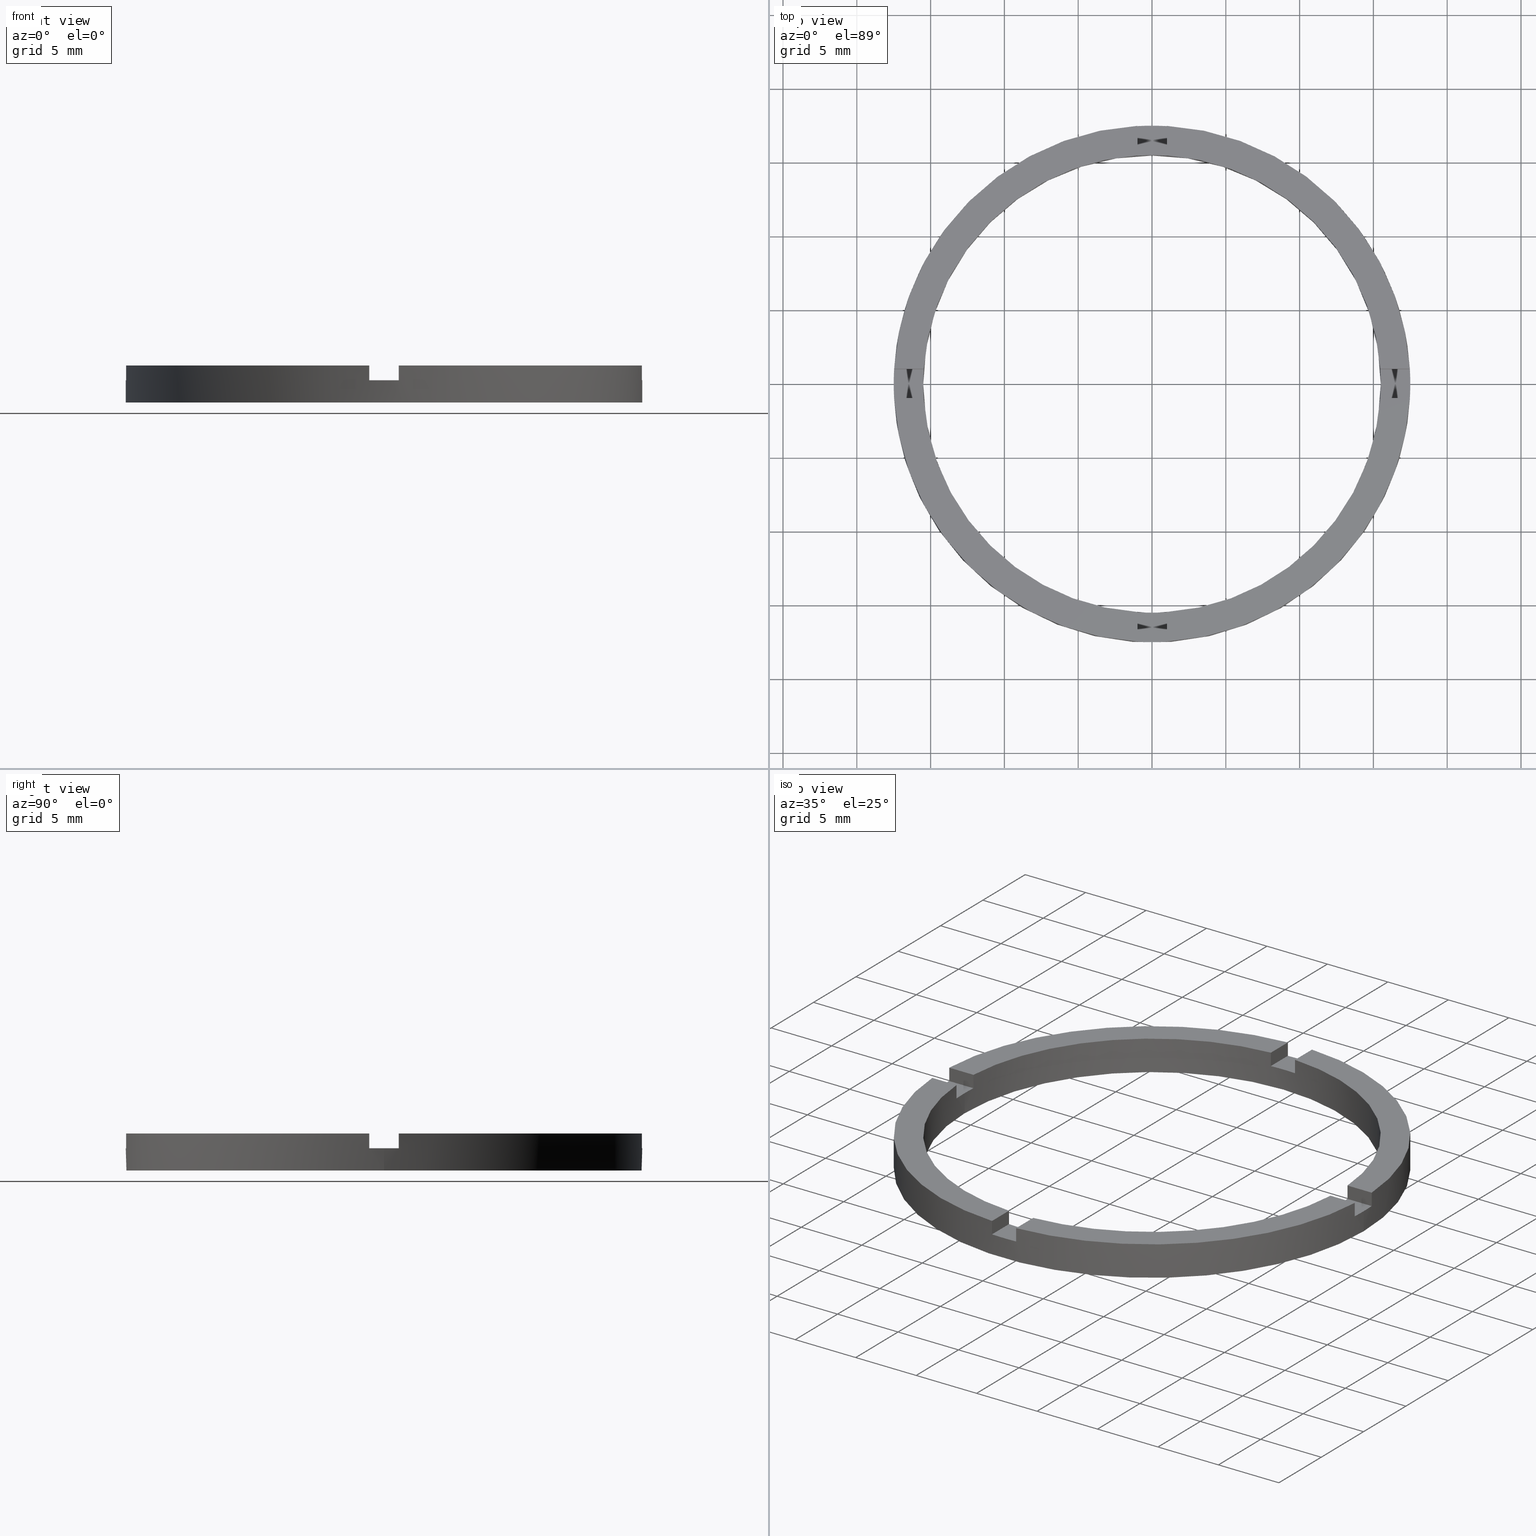
[diagram: canonical four-view strip — front | top / right | iso, engineering-drawing reading convention]
A machine part, canonical four-view strip (front | top / right | iso — engineering-drawing reading convention). The complete STEP part file that produces these views, byte-faithful:
ISO-10303-21;
HEADER;
FILE_DESCRIPTION (( 'STEP AP203' ),
    '1' );
FILE_NAME ('514076.step',
    '2024-12-26T02:35:15',
    ( 'MSI' ),
    ( '' ),
    'SwSTEP 2.0',
    'SolidWorks 2020',
    '' );
FILE_SCHEMA (( 'CONFIG_CONTROL_DESIGN' ));
ENDSEC;

DATA;
#1 = VERTEX_POINT ( 'NONE', #518 ) ;
#2 = AXIS2_PLACEMENT_3D ( 'NONE', #632, #779, #99 ) ;
#3 = DIRECTION ( 'NONE',  ( 1.000000000000000000, 0.000000000000000000, 0.000000000000000000 ) ) ;
#4 = DIRECTION ( 'NONE',  ( -0.000000000000000000, -0.000000000000000000, -1.000000000000000000 ) ) ;
#5 = DIRECTION ( 'NONE',  ( -0.000000000000000000, -0.000000000000000000, -1.000000000000000000 ) ) ;
#6 = ADVANCED_FACE ( 'NONE', ( #150 ), #426, .F. ) ;
#7 = DESIGN_CONTEXT ( 'detailed design', #368, 'design' ) ;
#8 = VERTEX_POINT ( 'NONE', #39 ) ;
#9 = DIRECTION ( 'NONE',  ( 0.000000000000000000, 0.000000000000000000, 1.000000000000000000 ) ) ;
#10 = DIRECTION ( 'NONE',  ( 0.000000000000000000, 0.000000000000000000, 1.000000000000000000 ) ) ;
#11 = ORIENTED_EDGE ( 'NONE', *, *, #355, .T. ) ;
#12 = APPROVAL ( #268, 'δָ��' ) ;
#13 = ADVANCED_FACE ( 'NONE', ( #678 ), #281, .T. ) ;
#14 = CARTESIAN_POINT ( 'NONE',  ( -15.50000000000000000, 0.000000000000000000, 0.000000000000000000 ) ) ;
#15 = EDGE_CURVE ( 'NONE', #533, #513, #684, .T. ) ;
#16 = LINE ( 'NONE', #338, #561 ) ;
#17 = CARTESIAN_POINT ( 'NONE',  ( 17.47140520965616162, 0.9999999999998411271, 2.500000000000000000 ) ) ;
#18 = LINE ( 'NONE', #53, #542 ) ;
#19 = EDGE_CURVE ( 'NONE', #500, #435, #722, .T. ) ;
#20 = VECTOR ( 'NONE', #537, 1000.000000000000000 ) ;
#21 = EDGE_CURVE ( 'NONE', #710, #525, #199, .T. ) ;
#22 = CIRCLE ( 'NONE', #774, 17.50000000000000355 ) ;
#23 = CARTESIAN_POINT ( 'NONE',  ( 0.000000000000000000, 0.000000000000000000, 1.500000000000000000 ) ) ;
#24 = CIRCLE ( 'NONE', #739, 15.50000000000000000 ) ;
#25 = AXIS2_PLACEMENT_3D ( 'NONE', #579, #611, #335 ) ;
#26 = DIRECTION ( 'NONE',  ( -0.000000000000000000, 0.000000000000000000, 1.000000000000000000 ) ) ;
#27 = FACE_OUTER_BOUND ( 'NONE', #217, .T. ) ;
#28 = DIRECTION ( 'NONE',  ( -1.000000000000000000, 0.000000000000000000, 0.000000000000000000 ) ) ;
#29 = DIRECTION ( 'NONE',  ( 0.000000000000000000, 0.000000000000000000, 1.000000000000000000 ) ) ;
#30 = CARTESIAN_POINT ( 'NONE',  ( 0.9999999999998363531, -7.500000000000185629, 1.500000000000000000 ) ) ;
#31 = AXIS2_PLACEMENT_3D ( 'NONE', #316, #311, #778 ) ;
#32 = VECTOR ( 'NONE', #233, 1000.000000000000000 ) ;
#33 = CARTESIAN_POINT ( 'NONE',  ( -1.000000000000025091, 15.46770829825801741, 2.500000000000000000 ) ) ;
#34 = CARTESIAN_POINT ( 'NONE',  ( -7.500000000000190958, -1.000000000000021982, 1.500000000000000000 ) ) ;
#35 = LINE ( 'NONE', #705, #556 ) ;
#36 = CARTESIAN_POINT ( 'NONE',  ( 15.46770829825802984, 0.9999999999998411271, 2.500000000000000000 ) ) ;
#37 = FACE_OUTER_BOUND ( 'NONE', #498, .T. ) ;
#38 = VECTOR ( 'NONE', #521, 1000.000000000000000 ) ;
#39 = CARTESIAN_POINT ( 'NONE',  ( 0.9999999999998366862, -15.46770829825802807, 2.500000000000000000 ) ) ;
#40 = DIRECTION ( 'NONE',  ( 1.000000000000000000, 0.000000000000000000, 0.000000000000000000 ) ) ;
#41 = CARTESIAN_POINT ( 'NONE',  ( -1.000000000000163647, -7.500000000000185629, 1.500000000000000000 ) ) ;
#42 = CARTESIAN_POINT ( 'NONE',  ( 0.9999999999999749090, 7.500000000000005329, 1.500000000000000000 ) ) ;
#43 = CARTESIAN_POINT ( 'NONE',  ( -1.000000000000024647, 15.46770829825801563, 2.500000000000000000 ) ) ;
#44 = VECTOR ( 'NONE', #333, 1000.000000000000000 ) ;
#45 = DIRECTION ( 'NONE',  ( 0.000000000000000000, 0.000000000000000000, 1.000000000000000000 ) ) ;
#46 = DIRECTION ( 'NONE',  ( -0.000000000000000000, -0.000000000000000000, -1.000000000000000000 ) ) ;
#47 = CARTESIAN_POINT ( 'NONE',  ( 0.000000000000000000, 0.000000000000000000, 2.500000000000000000 ) ) ;
#48 = DIRECTION ( 'NONE',  ( -0.000000000000000000, -0.000000000000000000, -1.000000000000000000 ) ) ;
#49 = AXIS2_PLACEMENT_3D ( 'NONE', #428, #10, #668 ) ;
#50 = CARTESIAN_POINT ( 'NONE',  ( 0.9999999999998371303, -15.46770829825802984, 2.500000000000000000 ) ) ;
#51 = DATE_AND_TIME ( #325, #618 ) ;
#52 = CARTESIAN_POINT ( 'NONE',  ( 0.9999999999998366862, -15.46770829825802807, 1.500000000000000000 ) ) ;
#53 = CARTESIAN_POINT ( 'NONE',  ( 17.50000000000000355, 2.143131898507868643E-15, 2.500000000000000000 ) ) ;
#54 = PLANE ( 'NONE',  #120 ) ;
#55 = ADVANCED_FACE ( 'NONE', ( #205 ), #743, .T. ) ;
#56 = CARTESIAN_POINT ( 'NONE',  ( 0.000000000000000000, 0.000000000000000000, 2.500000000000000000 ) ) ;
#57 = DIRECTION ( 'NONE',  ( 0.000000000000000000, 0.000000000000000000, 1.000000000000000000 ) ) ;
#58 = ADVANCED_FACE ( 'NONE', ( #469 ), #61, .F. ) ;
#59 = PLANE ( 'NONE',  #534 ) ;
#60 = AXIS2_PLACEMENT_3D ( 'NONE', #612, #575, #454 ) ;
#61 = PLANE ( 'NONE',  #487 ) ;
#62 = CC_DESIGN_APPROVAL ( #384, ( #514 ) ) ;
#63 = EDGE_CURVE ( 'NONE', #674, #146, #680, .T. ) ;
#64 = EDGE_CURVE ( 'NONE', #169, #213, #137, .T. ) ;
#65 = CARTESIAN_POINT ( 'NONE',  ( 0.9999999999998363531, -7.500000000000185629, 1.500000000000000000 ) ) ;
#66 = APPROVAL_STATUS ( 'not_yet_approved' ) ;
#67 = DIRECTION ( 'NONE',  ( 0.000000000000000000, 0.000000000000000000, 1.000000000000000000 ) ) ;
#68 = DIRECTION ( 'NONE',  ( 1.000000000000000000, -0.000000000000000000, 0.000000000000000000 ) ) ;
#69 = DIRECTION ( 'NONE',  ( 4.336808689942017120E-17, -1.000000000000000000, 0.000000000000000000 ) ) ;
#70 = DIRECTION ( 'NONE',  ( 1.000000000000000000, 1.734723475976806848E-16, -0.000000000000000000 ) ) ;
#71 = DIRECTION ( 'NONE',  ( 1.000000000000000000, 0.000000000000000000, -0.000000000000000000 ) ) ;
#72 = DIRECTION ( 'NONE',  ( 1.000000000000000000, 0.000000000000000000, 0.000000000000000000 ) ) ;
#73 = AXIS2_PLACEMENT_3D ( 'NONE', #65, #375, #228 ) ;
#74 = PERSON_AND_ORGANIZATION ( #256, #349 ) ;
#75 = AXIS2_PLACEMENT_3D ( 'NONE', #163, #236, #587 ) ;
#76 = PERSON_AND_ORGANIZATION_ROLE ( 'design_supplier' ) ;
#77 = COORDINATED_UNIVERSAL_TIME_OFFSET ( 8, 0, .AHEAD. ) ;
#78 = DATE_AND_TIME ( #606, #359 ) ;
#79 = DIRECTION ( 'NONE',  ( -1.000000000000000000, -1.301042606982605074E-16, 0.000000000000000000 ) ) ;
#80 = COORDINATED_UNIVERSAL_TIME_OFFSET ( 8, 0, .AHEAD. ) ;
#81 = EDGE_CURVE ( 'NONE', #735, #435, #147, .T. ) ;
#82 = DIRECTION ( 'NONE',  ( -0.000000000000000000, -0.000000000000000000, -1.000000000000000000 ) ) ;
#83 = DATE_AND_TIME ( #602, #607 ) ;
#84 = DIRECTION ( 'NONE',  ( 1.000000000000000000, 0.000000000000000000, -0.000000000000000000 ) ) ;
#85 = DIRECTION ( 'NONE',  ( 1.000000000000000000, 0.000000000000000000, 0.000000000000000000 ) ) ;
#86 = DIRECTION ( 'NONE',  ( 1.000000000000000000, 0.000000000000000000, 0.000000000000000000 ) ) ;
#87 = CARTESIAN_POINT ( 'NONE',  ( -1.000000000000162537, -15.46770829825800675, 1.500000000000000000 ) ) ;
#88 = FACE_OUTER_BOUND ( 'NONE', #254, .T. ) ;
#89 = EDGE_CURVE ( 'NONE', #213, #169, #683, .T. ) ;
#90 = DIRECTION ( 'NONE',  ( -0.000000000000000000, -1.000000000000000000, -0.000000000000000000 ) ) ;
#91 = CARTESIAN_POINT ( 'NONE',  ( 0.000000000000000000, 0.000000000000000000, 2.500000000000000000 ) ) ;
#92 = CARTESIAN_POINT ( 'NONE',  ( 7.500000000000000000, -1.000000000000159428, 1.500000000000000000 ) ) ;
#93 = COORDINATED_UNIVERSAL_TIME_OFFSET ( 8, 0, .AHEAD. ) ;
#94 = CALENDAR_DATE ( 2024, 26, 12 ) ;
#95 = CARTESIAN_POINT ( 'NONE',  ( -17.47140520965615096, 0.9999999999999763522, 1.500000000000000000 ) ) ;
#96 = DIRECTION ( 'NONE',  ( 0.000000000000000000, 0.000000000000000000, 1.000000000000000000 ) ) ;
#97 = DATE_AND_TIME ( #626, #363 ) ;
#98 = ADVANCED_FACE ( 'NONE', ( #409 ), #586, .F. ) ;
#99 = DIRECTION ( 'NONE',  ( -1.000000000000000000, 0.000000000000000000, 0.000000000000000000 ) ) ;
#100 = LOCAL_TIME ( 10, 35, 15.00000000000000000, #623 ) ;
#101 = EDGE_CURVE ( 'NONE', #161, #735, #401, .T. ) ;
#102 = PERSON_AND_ORGANIZATION ( #256, #349 ) ;
#103 = EDGE_CURVE ( 'NONE', #472, #490, #165, .T. ) ;
#104 = CIRCLE ( 'NONE', #565, 15.50000000000000000 ) ;
#105 = CARTESIAN_POINT ( 'NONE',  ( 0.000000000000000000, 0.000000000000000000, 0.000000000000000000 ) ) ;
#106 = LINE ( 'NONE', #334, #635 ) ;
#107 = ADVANCED_FACE ( 'NONE', ( #149 ), #658, .T. ) ;
#108 = FACE_OUTER_BOUND ( 'NONE', #702, .T. ) ;
#109 = AXIS2_PLACEMENT_3D ( 'NONE', #492, #546, #585 ) ;
#110 = ORIENTED_EDGE ( 'NONE', *, *, #194, .F. ) ;
#111 = DIRECTION ( 'NONE',  ( 0.000000000000000000, 0.000000000000000000, 1.000000000000000000 ) ) ;
#112 = LINE ( 'NONE', #308, #653 ) ;
#113 = EDGE_LOOP ( 'NONE', ( #387, #255, #766, #128 ) ) ;
#114 = DIRECTION ( 'NONE',  ( 0.000000000000000000, -0.000000000000000000, 1.000000000000000000 ) ) ;
#115 = ORIENTED_EDGE ( 'NONE', *, *, #477, .F. ) ;
#116 = SECURITY_CLASSIFICATION_LEVEL ( 'unclassified' ) ;
#117 = EDGE_CURVE ( 'NONE', #737, #677, #399, .T. ) ;
#118 = ORIENTED_EDGE ( 'NONE', *, *, #598, .T. ) ;
#119 = ORIENTED_EDGE ( 'NONE', *, *, #206, .T. ) ;
#120 = AXIS2_PLACEMENT_3D ( 'NONE', #177, #57, #733 ) ;
#121 = CIRCLE ( 'NONE', #267, 15.50000000000000000 ) ;
#122 = LINE ( 'NONE', #383, #397 ) ;
#123 = CARTESIAN_POINT ( 'NONE',  ( 15.46770829825800853, -1.000000000000158984, 1.500000000000000000 ) ) ;
#124 = CARTESIAN_POINT ( 'NONE',  ( 17.47140520965614385, -1.000000000000158984, 2.500000000000000000 ) ) ;
#125 = FACE_OUTER_BOUND ( 'NONE', #215, .T. ) ;
#126 = EDGE_CURVE ( 'NONE', #8, #432, #415, .T. ) ;
#127 = LINE ( 'NONE', #231, #129 ) ;
#128 = ORIENTED_EDGE ( 'NONE', *, *, #477, .T. ) ;
#129 = VECTOR ( 'NONE', #406, 1000.000000000000000 ) ;
#130 = LINE ( 'NONE', #240, #404 ) ;
#131 = EDGE_CURVE ( 'NONE', #402, #432, #130, .T. ) ;
#132 = ORIENTED_EDGE ( 'NONE', *, *, #126, .F. ) ;
#133 = CARTESIAN_POINT ( 'NONE',  ( 7.500000000000000000, -1.000000000000159428, 2.500000000000000000 ) ) ;
#134 = VECTOR ( 'NONE', #738, 1000.000000000000000 ) ;
#135 = ORIENTED_EDGE ( 'NONE', *, *, #531, .T. ) ;
#136 = MECHANICAL_CONTEXT ( 'NONE', #577, 'mechanical' ) ;
#137 = CIRCLE ( 'NONE', #140, 17.50000000000000355 ) ;
#138 = DIRECTION ( 'NONE',  ( 1.000000000000000000, 4.336808689942017120E-17, 0.000000000000000000 ) ) ;
#139 = CARTESIAN_POINT ( 'NONE',  ( 0.9999999999999744649, 15.46770829825801918, 1.500000000000000000 ) ) ;
#140 = AXIS2_PLACEMENT_3D ( 'NONE', #105, #433, #304 ) ;
#141 = EDGE_LOOP ( 'NONE', ( #689, #690, #728, #464 ) ) ;
#142 = VERTEX_POINT ( 'NONE', #660 ) ;
#143 = FACE_OUTER_BOUND ( 'NONE', #448, .T. ) ;
#144 = ORIENTED_EDGE ( 'NONE', *, *, #264, .T. ) ;
#145 = EDGE_CURVE ( 'NONE', #517, #497, #665, .T. ) ;
#146 = VERTEX_POINT ( 'NONE', #14 ) ;
#147 = LINE ( 'NONE', #503, #669 ) ;
#148 = DIRECTION ( 'NONE',  ( 1.000000000000000000, 0.000000000000000000, 0.000000000000000000 ) ) ;
#149 = FACE_OUTER_BOUND ( 'NONE', #530, .T. ) ;
#150 = FACE_OUTER_BOUND ( 'NONE', #759, .T. ) ;
#151 = CARTESIAN_POINT ( 'NONE',  ( -15.46770829825801741, -1.000000000000023315, 1.500000000000000000 ) ) ;
#152 = ORIENTED_EDGE ( 'NONE', *, *, #81, .T. ) ;
#153 = ORIENTED_EDGE ( 'NONE', *, *, #303, .F. ) ;
#154 = PLANE ( 'NONE',  #697 ) ;
#155 = VECTOR ( 'NONE', #5, 1000.000000000000000 ) ;
#156 = CARTESIAN_POINT ( 'NONE',  ( -7.500000000000190958, -1.000000000000021982, 2.500000000000000000 ) ) ;
#157 = DIRECTION ( 'NONE',  ( 1.000000000000000000, 0.000000000000000000, 0.000000000000000000 ) ) ;
#158 = EDGE_LOOP ( 'NONE', ( #271, #685, #427, #11 ) ) ;
#159 = EDGE_CURVE ( 'NONE', #184, #475, #417, .T. ) ;
#160 = DIRECTION ( 'NONE',  ( 1.000000000000000000, 0.000000000000000000, -0.000000000000000000 ) ) ;
#161 = VERTEX_POINT ( 'NONE', #87 ) ;
#162 = ORIENTED_EDGE ( 'NONE', *, *, #569, .T. ) ;
#163 = CARTESIAN_POINT ( 'NONE',  ( 0.000000000000000000, 0.000000000000000000, 2.500000000000000000 ) ) ;
#164 = EDGE_LOOP ( 'NONE', ( #520, #451, #253, #216 ) ) ;
#165 = CIRCLE ( 'NONE', #31, 17.50000000000000355 ) ;
#166 = AXIS2_PLACEMENT_3D ( 'NONE', #56, #185, #491 ) ;
#167 = CARTESIAN_POINT ( 'NONE',  ( -17.47140520965615096, -1.000000000000023759, 1.500000000000000000 ) ) ;
#168 = ORIENTED_EDGE ( 'NONE', *, *, #747, .T. ) ;
#169 = VERTEX_POINT ( 'NONE', #639 ) ;
#170 = EDGE_LOOP ( 'NONE', ( #210, #780, #681, #410 ) ) ;
#171 = CARTESIAN_POINT ( 'NONE',  ( -1.000000000000025091, 17.47140520965615096, 2.500000000000000000 ) ) ;
#172 = ADVANCED_FACE ( 'NONE', ( #143 ), #718, .F. ) ;
#173 = CYLINDRICAL_SURFACE ( 'NONE', #2, 17.50000000000000355 ) ;
#174 = FACE_OUTER_BOUND ( 'NONE', #422, .T. ) ;
#175 = DIRECTION ( 'NONE',  ( -0.000000000000000000, -0.000000000000000000, -1.000000000000000000 ) ) ;
#176 = DIRECTION ( 'NONE',  ( 1.734723475976806848E-16, -1.000000000000000000, 0.000000000000000000 ) ) ;
#177 = CARTESIAN_POINT ( 'NONE',  ( 0.000000000000000000, 0.000000000000000000, 2.500000000000000000 ) ) ;
#178 = ADVANCED_BREP_SHAPE_REPRESENTATION ( '514076', ( #711, #186 ), #352 ) ;
#179 = ORIENTED_EDGE ( 'NONE', *, *, #63, .T. ) ;
#180 = EDGE_LOOP ( 'NONE', ( #686, #261, #515, #459 ) ) ;
#181 = LINE ( 'NONE', #171, #692 ) ;
#182 = AXIS2_PLACEMENT_3D ( 'NONE', #644, #446, #506 ) ;
#183 = ORIENTED_EDGE ( 'NONE', *, *, #306, .F. ) ;
#184 = VERTEX_POINT ( 'NONE', #43 ) ;
#185 = DIRECTION ( 'NONE',  ( -0.000000000000000000, -0.000000000000000000, -1.000000000000000000 ) ) ;
#186 = AXIS2_PLACEMENT_3D ( 'NONE', #567, #45, #148 ) ;
#187 = ORIENTED_EDGE ( 'NONE', *, *, #392, .T. ) ;
#188 = VECTOR ( 'NONE', #378, 1000.000000000000000 ) ;
#189 = ORIENTED_EDGE ( 'NONE', *, *, #488, .F. ) ;
#190 = EDGE_CURVE ( 'NONE', #748, #440, #181, .T. ) ;
#191 = VERTEX_POINT ( 'NONE', #290 ) ;
#192 = ORIENTED_EDGE ( 'NONE', *, *, #81, .F. ) ;
#193 = ORIENTED_EDGE ( 'NONE', *, *, #117, .T. ) ;
#194 = EDGE_CURVE ( 'NONE', #472, #263, #444, .T. ) ;
#195 = EDGE_LOOP ( 'NONE', ( #445, #258, #519, #527 ) ) ;
#196 = ADVANCED_FACE ( 'NONE', ( #174, #437 ), #336, .F. ) ;
#197 = ORIENTED_EDGE ( 'NONE', *, *, #551, .T. ) ;
#198 = ORIENTED_EDGE ( 'NONE', *, *, #145, .T. ) ;
#199 = LINE ( 'NONE', #34, #204 ) ;
#200 = ORIENTED_EDGE ( 'NONE', *, *, #563, .F. ) ;
#201 = AXIS2_PLACEMENT_3D ( 'NONE', #591, #643, #3 ) ;
#202 = ORIENTED_EDGE ( 'NONE', *, *, #303, .T. ) ;
#203 = ORIENTED_EDGE ( 'NONE', *, *, #716, .T. ) ;
#204 = VECTOR ( 'NONE', #70, 1000.000000000000000 ) ;
#205 = FACE_OUTER_BOUND ( 'NONE', #158, .T. ) ;
#206 = EDGE_CURVE ( 'NONE', #517, #529, #698, .T. ) ;
#207 = ORIENTED_EDGE ( 'NONE', *, *, #583, .F. ) ;
#208 = AXIS2_PLACEMENT_3D ( 'NONE', #457, #227, #532 ) ;
#209 = ORIENTED_EDGE ( 'NONE', *, *, #277, .F. ) ;
#210 = ORIENTED_EDGE ( 'NONE', *, *, #194, .T. ) ;
#211 = ORIENTED_EDGE ( 'NONE', *, *, #633, .T. ) ;
#212 = CARTESIAN_POINT ( 'NONE',  ( -1.000000000000024647, 15.46770829825801563, 1.500000000000000000 ) ) ;
#213 = VERTEX_POINT ( 'NONE', #582 ) ;
#214 = CARTESIAN_POINT ( 'NONE',  ( -1.000000000000162759, -15.46770829825800853, 2.500000000000000000 ) ) ;
#215 = EDGE_LOOP ( 'NONE', ( #484, #132, #504, #119 ) ) ;
#216 = ORIENTED_EDGE ( 'NONE', *, *, #716, .F. ) ;
#217 = EDGE_LOOP ( 'NONE', ( #118, #676, #650, #450, #714, #193 ) ) ;
#218 = CARTESIAN_POINT ( 'NONE',  ( 0.9999999999999744649, 17.47140520965614741, 1.500000000000000000 ) ) ;
#219 = ORIENTED_EDGE ( 'NONE', *, *, #598, .F. ) ;
#220 = CARTESIAN_POINT ( 'NONE',  ( -7.500000000000190958, 0.9999999999999781286, 2.500000000000000000 ) ) ;
#221 = DIRECTION ( 'NONE',  ( -1.301042606982605074E-16, 1.000000000000000000, -0.000000000000000000 ) ) ;
#222 = CARTESIAN_POINT ( 'NONE',  ( 0.9999999999999749090, 15.46770829825802096, 2.500000000000000000 ) ) ;
#223 = DATE_TIME_ROLE ( 'classification_date' ) ;
#224 = DIRECTION ( 'NONE',  ( -0.000000000000000000, -0.000000000000000000, -1.000000000000000000 ) ) ;
#225 = ORIENTED_EDGE ( 'NONE', *, *, #569, .F. ) ;
#226 = PERSON_AND_ORGANIZATION_ROLE ( 'creator' ) ;
#227 = DIRECTION ( 'NONE',  ( 0.000000000000000000, 0.000000000000000000, 1.000000000000000000 ) ) ;
#228 = DIRECTION ( 'NONE',  ( -1.301042606982605074E-16, 1.000000000000000000, 0.000000000000000000 ) ) ;
#229 = EDGE_CURVE ( 'NONE', #511, #529, #438, .T. ) ;
#230 = CC_DESIGN_APPROVAL ( #443, ( #319 ) ) ;
#231 = CARTESIAN_POINT ( 'NONE',  ( 7.500000000000000000, 0.9999999999998406830, 1.500000000000000000 ) ) ;
#232 = ORIENTED_EDGE ( 'NONE', *, *, #117, .F. ) ;
#233 = DIRECTION ( 'NONE',  ( -0.000000000000000000, -0.000000000000000000, -1.000000000000000000 ) ) ;
#234 = DIRECTION ( 'NONE',  ( 0.000000000000000000, 0.000000000000000000, 1.000000000000000000 ) ) ;
#235 = AXIS2_PLACEMENT_3D ( 'NONE', #382, #29, #72 ) ;
#236 = DIRECTION ( 'NONE',  ( -0.000000000000000000, -0.000000000000000000, -1.000000000000000000 ) ) ;
#237 = ORIENTED_EDGE ( 'NONE', *, *, #15, .F. ) ;
#238 = DIRECTION ( 'NONE',  ( 0.000000000000000000, 0.000000000000000000, 1.000000000000000000 ) ) ;
#239 = ORIENTED_EDGE ( 'NONE', *, *, #601, .T. ) ;
#240 = CARTESIAN_POINT ( 'NONE',  ( 15.46770829825800853, -1.000000000000158984, 2.500000000000000000 ) ) ;
#241 = ORIENTED_EDGE ( 'NONE', *, *, #159, .F. ) ;
#242 = ORIENTED_EDGE ( 'NONE', *, *, #229, .T. ) ;
#243 = ORIENTED_EDGE ( 'NONE', *, *, #103, .F. ) ;
#244 = AXIS2_PLACEMENT_3D ( 'NONE', #724, #346, #412 ) ;
#245 = CARTESIAN_POINT ( 'NONE',  ( 17.50000000000000355, 2.143131898507868643E-15, 1.500000000000000000 ) ) ;
#246 = PRODUCT_DEFINITION_SHAPE ( 'NONE', 'NONE',  #514 ) ;
#247 = ADVANCED_FACE ( 'NONE', ( #704 ), #173, .T. ) ;
#248 = ORIENTED_EDGE ( 'NONE', *, *, #318, .T. ) ;
#249 = DIRECTION ( 'NONE',  ( 1.301042606982605074E-16, -1.000000000000000000, 0.000000000000000000 ) ) ;
#250 = AXIS2_PLACEMENT_3D ( 'NONE', #715, #452, #528 ) ;
#251 = ORIENTED_EDGE ( 'NONE', *, *, #101, .F. ) ;
#252 = CARTESIAN_POINT ( 'NONE',  ( 15.46770829825802984, 0.9999999999998411271, 2.500000000000000000 ) ) ;
#253 = ORIENTED_EDGE ( 'NONE', *, *, #601, .F. ) ;
#254 = EDGE_LOOP ( 'NONE', ( #436, #510, #673, #482 ) ) ;
#255 = ORIENTED_EDGE ( 'NONE', *, *, #595, .F. ) ;
#256 = PERSON ( 'δָ��', 'δָ��', 'δָ��', ('δָ��'), ('δָ��'), ('δָ��') ) ;
#257 = ADVANCED_FACE ( 'NONE', ( #377 ), #54, .T. ) ;
#258 = ORIENTED_EDGE ( 'NONE', *, *, #159, .T. ) ;
#259 = CARTESIAN_POINT ( 'NONE',  ( 0.9999999999998369082, -17.47140520965615806, 1.500000000000000000 ) ) ;
#260 = ORIENTED_EDGE ( 'NONE', *, *, #269, .F. ) ;
#261 = ORIENTED_EDGE ( 'NONE', *, *, #516, .T. ) ;
#262 = ORIENTED_EDGE ( 'NONE', *, *, #206, .F. ) ;
#263 = VERTEX_POINT ( 'NONE', #252 ) ;
#264 = EDGE_CURVE ( 'NONE', #674, #525, #640, .T. ) ;
#265 = DIRECTION ( 'NONE',  ( 1.000000000000000000, 0.000000000000000000, 0.000000000000000000 ) ) ;
#266 = VERTEX_POINT ( 'NONE', #423 ) ;
#267 = AXIS2_PLACEMENT_3D ( 'NONE', #571, #772, #40 ) ;
#268 = APPROVAL_STATUS ( 'not_yet_approved' ) ;
#269 = EDGE_CURVE ( 'NONE', #691, #710, #372, .T. ) ;
#270 = CARTESIAN_POINT ( 'NONE',  ( -1.000000000000024647, 17.47140520965614741, 1.500000000000000000 ) ) ;
#271 = ORIENTED_EDGE ( 'NONE', *, *, #360, .T. ) ;
#272 = EDGE_CURVE ( 'NONE', #497, #703, #649, .T. ) ;
#273 = PERSON_AND_ORGANIZATION_ROLE ( 'creator' ) ;
#274 = DIRECTION ( 'NONE',  ( 1.000000000000000000, 4.336808689942017120E-17, 0.000000000000000000 ) ) ;
#275 = AXIS2_PLACEMENT_3D ( 'NONE', #285, #455, #71 ) ;
#276 = PLANE ( 'NONE',  #275 ) ;
#277 = EDGE_CURVE ( 'NONE', #405, #146, #390, .T. ) ;
#278 = DIRECTION ( 'NONE',  ( -0.000000000000000000, -1.000000000000000000, -0.000000000000000000 ) ) ;
#279 = VECTOR ( 'NONE', #4, 1000.000000000000000 ) ;
#280 = DIRECTION ( 'NONE',  ( 1.000000000000000000, 4.336808689942017120E-17, 0.000000000000000000 ) ) ;
#281 = PLANE ( 'NONE',  #60 ) ;
#282 = AXIS2_PLACEMENT_3D ( 'NONE', #339, #574, #393 ) ;
#283 = PERSON_AND_ORGANIZATION_ROLE ( 'design_owner' ) ;
#284 = FACE_OUTER_BOUND ( 'NONE', #170, .T. ) ;
#285 = CARTESIAN_POINT ( 'NONE',  ( 0.000000000000000000, 0.000000000000000000, 1.500000000000000000 ) ) ;
#286 = AXIS2_PLACEMENT_3D ( 'NONE', #91, #238, #309 ) ;
#287 = CARTESIAN_POINT ( 'NONE',  ( 0.9999999999999749090, 17.47140520965615096, 2.500000000000000000 ) ) ;
#288 = LINE ( 'NONE', #615, #545 ) ;
#289 = CIRCLE ( 'NONE', #182, 15.50000000000000000 ) ;
#290 = CARTESIAN_POINT ( 'NONE',  ( -17.47140520965615096, -1.000000000000023759, 2.500000000000000000 ) ) ;
#291 = VECTOR ( 'NONE', #331, 1000.000000000000000 ) ;
#292 = APPROVAL_ROLE ( '' ) ;
#293 = VECTOR ( 'NONE', #224, 1000.000000000000000 ) ;
#294 = DIRECTION ( 'NONE',  ( 1.301042606982605074E-16, -1.000000000000000000, 0.000000000000000000 ) ) ;
#295 = CIRCLE ( 'NONE', #495, 17.50000000000000355 ) ;
#296 = DIRECTION ( 'NONE',  ( 0.000000000000000000, 1.000000000000000000, 0.000000000000000000 ) ) ;
#297 = LINE ( 'NONE', #50, #38 ) ;
#298 = CARTESIAN_POINT ( 'NONE',  ( -1.000000000000024647, 17.47140520965614741, 2.500000000000000000 ) ) ;
#299 = VECTOR ( 'NONE', #629, 1000.000000000000000 ) ;
#300 = CARTESIAN_POINT ( 'NONE',  ( 17.47140520965614385, -1.000000000000158984, 1.500000000000000000 ) ) ;
#301 = LINE ( 'NONE', #624, #305 ) ;
#302 = CARTESIAN_POINT ( 'NONE',  ( 0.000000000000000000, 0.000000000000000000, 0.000000000000000000 ) ) ;
#303 = EDGE_CURVE ( 'NONE', #737, #142, #106, .T. ) ;
#304 = DIRECTION ( 'NONE',  ( 1.000000000000000000, 0.000000000000000000, 0.000000000000000000 ) ) ;
#305 = VECTOR ( 'NONE', #374, 1000.000000000000000 ) ;
#306 = EDGE_CURVE ( 'NONE', #402, #424, #656, .T. ) ;
#307 = LINE ( 'NONE', #287, #44 ) ;
#308 = CARTESIAN_POINT ( 'NONE',  ( -1.000000000000025091, 7.500000000000005329, 1.500000000000000000 ) ) ;
#309 = DIRECTION ( 'NONE',  ( 1.000000000000000000, 0.000000000000000000, 0.000000000000000000 ) ) ;
#310 = LINE ( 'NONE', #544, #279 ) ;
#311 = DIRECTION ( 'NONE',  ( 0.000000000000000000, 0.000000000000000000, 1.000000000000000000 ) ) ;
#312 = VECTOR ( 'NONE', #588, 1000.000000000000000 ) ;
#313 = LINE ( 'NONE', #156, #312 ) ;
#314 = LINE ( 'NONE', #573, #291 ) ;
#315 = CARTESIAN_POINT ( 'NONE',  ( -17.50000000000000355, 0.000000000000000000, 1.500000000000000000 ) ) ;
#316 = CARTESIAN_POINT ( 'NONE',  ( 0.000000000000000000, 0.000000000000000000, 2.500000000000000000 ) ) ;
#317 = PRODUCT ( '514076', '514076', '', ( #136 ) ) ;
#318 = EDGE_CURVE ( 'NONE', #677, #535, #122, .T. ) ;
#319 = SECURITY_CLASSIFICATION ( '', '', #116 ) ;
#320 = ADVANCED_FACE ( 'NONE', ( #88 ), #371, .F. ) ;
#321 = DIRECTION ( 'NONE',  ( -1.000000000000000000, -1.734723475976806848E-16, 0.000000000000000000 ) ) ;
#322 = ADVANCED_FACE ( 'NONE', ( #366 ), #637, .F. ) ;
#323 = AXIS2_PLACEMENT_3D ( 'NONE', #474, #460, #620 ) ;
#324 = PRODUCT_DEFINITION_FORMATION_WITH_SPECIFIED_SOURCE ( '�κ�', '', #317, .NOT_KNOWN. ) ;
#325 = CALENDAR_DATE ( 2024, 26, 12 ) ;
#326 = PERSON_AND_ORGANIZATION_ROLE ( 'classification_officer' ) ;
#327 = EDGE_CURVE ( 'NONE', #263, #513, #104, .T. ) ;
#328 = PLANE ( 'NONE',  #250 ) ;
#329 = CARTESIAN_POINT ( 'NONE',  ( 0.000000000000000000, 0.000000000000000000, 2.500000000000000000 ) ) ;
#330 = CARTESIAN_POINT ( 'NONE',  ( 0.9999999999999744649, 17.47140520965614741, 2.500000000000000000 ) ) ;
#331 = DIRECTION ( 'NONE',  ( -1.301042606982605074E-16, 1.000000000000000000, -0.000000000000000000 ) ) ;
#332 = AXIS2_PLACEMENT_3D ( 'NONE', #599, #114, #600 ) ;
#333 = DIRECTION ( 'NONE',  ( 0.000000000000000000, 0.000000000000000000, 1.000000000000000000 ) ) ;
#334 = CARTESIAN_POINT ( 'NONE',  ( -15.46770829825802096, 0.9999999999999767963, 2.500000000000000000 ) ) ;
#335 = DIRECTION ( 'NONE',  ( 1.000000000000000000, 0.000000000000000000, 0.000000000000000000 ) ) ;
#336 = PLANE ( 'NONE',  #613 ) ;
#337 = CARTESIAN_POINT ( 'NONE',  ( 0.000000000000000000, 0.000000000000000000, 1.500000000000000000 ) ) ;
#338 = CARTESIAN_POINT ( 'NONE',  ( -15.46770829825801741, -1.000000000000023315, 2.500000000000000000 ) ) ;
#339 = CARTESIAN_POINT ( 'NONE',  ( 0.000000000000000000, 0.000000000000000000, 1.500000000000000000 ) ) ;
#340 = DIRECTION ( 'NONE',  ( 1.000000000000000000, 1.734723475976806848E-16, 0.000000000000000000 ) ) ;
#341 = CARTESIAN_POINT ( 'NONE',  ( 0.000000000000000000, 0.000000000000000000, 2.500000000000000000 ) ) ;
#342 = CARTESIAN_POINT ( 'NONE',  ( 0.9999999999999749090, 7.500000000000005329, 2.500000000000000000 ) ) ;
#343 = PERSON_AND_ORGANIZATION ( #256, #349 ) ;
#344 = CARTESIAN_POINT ( 'NONE',  ( -15.46770829825801741, -1.000000000000023315, 2.500000000000000000 ) ) ;
#345 = APPROVAL_PERSON_ORGANIZATION ( #365, #12, #292 ) ;
#346 = DIRECTION ( 'NONE',  ( 0.000000000000000000, -0.000000000000000000, 1.000000000000000000 ) ) ;
#347 = CARTESIAN_POINT ( 'NONE',  ( -1.000000000000025091, 7.500000000000005329, 1.500000000000000000 ) ) ;
#348 = DATE_AND_TIME ( #94, #100 ) ;
#349 = ORGANIZATION ( 'δָ��', 'δָ��', '' ) ;
#350 = DIRECTION ( 'NONE',  ( 1.000000000000000000, 0.000000000000000000, 0.000000000000000000 ) ) ;
#351 = APPROVAL_DATE_TIME ( #83, #12 ) ;
#352 =( GEOMETRIC_REPRESENTATION_CONTEXT ( 3 ) GLOBAL_UNCERTAINTY_ASSIGNED_CONTEXT ( ( #447 ) ) GLOBAL_UNIT_ASSIGNED_CONTEXT ( ( #627, #526, #536 ) ) REPRESENTATION_CONTEXT ( 'NONE', 'WORKASPACE' ) );
#353 = COORDINATED_UNIVERSAL_TIME_OFFSET ( 8, 0, .AHEAD. ) ;
#354 = PERSON_AND_ORGANIZATION ( #256, #349 ) ;
#355 = EDGE_CURVE ( 'NONE', #533, #493, #367, .T. ) ;
#356 = DIRECTION ( 'NONE',  ( 1.000000000000000000, 0.000000000000000000, -0.000000000000000000 ) ) ;
#357 = ADVANCED_FACE ( 'NONE', ( #108 ), #580, .F. ) ;
#358 = AXIS2_PLACEMENT_3D ( 'NONE', #749, #26, #362 ) ;
#359 = LOCAL_TIME ( 10, 35, 15.00000000000000000, #353 ) ;
#360 = EDGE_CURVE ( 'NONE', #493, #440, #638, .T. ) ;
#361 = PERSON_AND_ORGANIZATION ( #256, #349 ) ;
#362 = DIRECTION ( 'NONE',  ( 1.000000000000000000, 0.000000000000000000, 0.000000000000000000 ) ) ;
#363 = LOCAL_TIME ( 10, 35, 15.00000000000000000, #80 ) ;
#364 = APPROVAL_PERSON_ORGANIZATION ( #343, #384, #442 ) ;
#365 = PERSON_AND_ORGANIZATION ( #256, #349 ) ;
#366 = FACE_OUTER_BOUND ( 'NONE', #180, .T. ) ;
#367 = LINE ( 'NONE', #42, #634 ) ;
#368 = APPLICATION_CONTEXT ( 'configuration controlled 3d designs of mechanical parts and assemblies' ) ;
#369 = CARTESIAN_POINT ( 'NONE',  ( 15.50000000000000000, 1.898202538678397557E-15, 0.000000000000000000 ) ) ;
#370 = DIRECTION ( 'NONE',  ( -0.000000000000000000, 0.000000000000000000, 1.000000000000000000 ) ) ;
#371 = PLANE ( 'NONE',  #416 ) ;
#372 = CIRCLE ( 'NONE', #109, 17.50000000000000355 ) ;
#373 = AXIS2_PLACEMENT_3D ( 'NONE', #570, #752, #28 ) ;
#374 = DIRECTION ( 'NONE',  ( -0.000000000000000000, -0.000000000000000000, -1.000000000000000000 ) ) ;
#375 = DIRECTION ( 'NONE',  ( 1.000000000000000000, 1.301042606982605074E-16, 0.000000000000000000 ) ) ;
#376 = EDGE_CURVE ( 'NONE', #695, #213, #18, .T. ) ;
#377 = FACE_OUTER_BOUND ( 'NONE', #113, .T. ) ;
#378 = DIRECTION ( 'NONE',  ( -1.000000000000000000, -4.336808689942017120E-17, -0.000000000000000000 ) ) ;
#379 = ORIENTED_EDGE ( 'NONE', *, *, #693, .T. ) ;
#380 = LINE ( 'NONE', #342, #663 ) ;
#381 = CIRCLE ( 'NONE', #652, 15.50000000000000000 ) ;
#382 = CARTESIAN_POINT ( 'NONE',  ( 0.000000000000000000, 0.000000000000000000, 1.500000000000000000 ) ) ;
#383 = CARTESIAN_POINT ( 'NONE',  ( -17.47140520965615096, 0.9999999999999763522, 2.500000000000000000 ) ) ;
#384 = APPROVAL ( #66, 'δָ��' ) ;
#385 = DIRECTION ( 'NONE',  ( 0.000000000000000000, 0.000000000000000000, 1.000000000000000000 ) ) ;
#386 = CIRCLE ( 'NONE', #208, 17.50000000000000355 ) ;
#387 = ORIENTED_EDGE ( 'NONE', *, *, #19, .F. ) ;
#388 = EDGE_CURVE ( 'NONE', #191, #710, #310, .T. ) ;
#389 = CIRCLE ( 'NONE', #201, 15.50000000000000000 ) ;
#390 = CIRCLE ( 'NONE', #590, 15.50000000000000000 ) ;
#391 = ORIENTED_EDGE ( 'NONE', *, *, #551, .F. ) ;
#392 = EDGE_CURVE ( 'NONE', #737, #674, #289, .T. ) ;
#393 = DIRECTION ( 'NONE',  ( 1.000000000000000000, 0.000000000000000000, 0.000000000000000000 ) ) ;
#394 = CC_DESIGN_SECURITY_CLASSIFICATION ( #319, ( #324 ) ) ;
#395 = LINE ( 'NONE', #476, #655 ) ;
#396 = CARTESIAN_POINT ( 'NONE',  ( 0.000000000000000000, 0.000000000000000000, 0.000000000000000000 ) ) ;
#397 = VECTOR ( 'NONE', #617, 1000.000000000000000 ) ;
#398 = DIRECTION ( 'NONE',  ( 0.000000000000000000, -0.000000000000000000, 1.000000000000000000 ) ) ;
#399 = LINE ( 'NONE', #631, #662 ) ;
#400 = CYLINDRICAL_SURFACE ( 'NONE', #75, 15.50000000000000000 ) ;
#401 = LINE ( 'NONE', #413, #688 ) ;
#402 = VERTEX_POINT ( 'NONE', #123 ) ;
#403 = CARTESIAN_POINT ( 'NONE',  ( 0.000000000000000000, 0.000000000000000000, 1.500000000000000000 ) ) ;
#404 = VECTOR ( 'NONE', #486, 1000.000000000000000 ) ;
#405 = VERTEX_POINT ( 'NONE', #369 ) ;
#406 = DIRECTION ( 'NONE',  ( -1.000000000000000000, -4.336808689942017120E-17, -0.000000000000000000 ) ) ;
#407 = FACE_OUTER_BOUND ( 'NONE', #481, .T. ) ;
#408 = ORIENTED_EDGE ( 'NONE', *, *, #190, .T. ) ;
#409 = FACE_OUTER_BOUND ( 'NONE', #141, .T. ) ;
#410 = ORIENTED_EDGE ( 'NONE', *, *, #730, .F. ) ;
#411 = DIRECTION ( 'NONE',  ( 0.000000000000000000, 1.000000000000000000, 0.000000000000000000 ) ) ;
#412 = DIRECTION ( 'NONE',  ( 1.000000000000000000, 0.000000000000000000, 0.000000000000000000 ) ) ;
#413 = CARTESIAN_POINT ( 'NONE',  ( -1.000000000000163647, -7.500000000000185629, 1.500000000000000000 ) ) ;
#414 = DIRECTION ( 'NONE',  ( -0.000000000000000000, -0.000000000000000000, -1.000000000000000000 ) ) ;
#415 = CIRCLE ( 'NONE', #744, 15.50000000000000000 ) ;
#416 = AXIS2_PLACEMENT_3D ( 'NONE', #777, #68, #522 ) ;
#417 = LINE ( 'NONE', #33, #670 ) ;
#418 = ORIENTED_EDGE ( 'NONE', *, *, #306, .T. ) ;
#419 = AXIS2_PLACEMENT_3D ( 'NONE', #41, #79, #294 ) ;
#420 = PLANE ( 'NONE',  #524 ) ;
#421 = ORIENTED_EDGE ( 'NONE', *, *, #488, .T. ) ;
#422 = EDGE_LOOP ( 'NONE', ( #783, #509 ) ) ;
#423 = CARTESIAN_POINT ( 'NONE',  ( 17.47140520965616162, 0.9999999999998411271, 1.500000000000000000 ) ) ;
#424 = VERTEX_POINT ( 'NONE', #671 ) ;
#425 = CARTESIAN_POINT ( 'NONE',  ( 0.000000000000000000, 0.000000000000000000, 0.000000000000000000 ) ) ;
#426 = CYLINDRICAL_SURFACE ( 'NONE', #373, 15.50000000000000000 ) ;
#427 = ORIENTED_EDGE ( 'NONE', *, *, #764, .F. ) ;
#428 = CARTESIAN_POINT ( 'NONE',  ( 0.000000000000000000, 0.000000000000000000, 2.500000000000000000 ) ) ;
#429 = ADVANCED_FACE ( 'NONE', ( #553 ), #59, .T. ) ;
#430 = ORIENTED_EDGE ( 'NONE', *, *, #767, .F. ) ;
#431 = CARTESIAN_POINT ( 'NONE',  ( -1.000000000000162537, -15.46770829825800675, 2.500000000000000000 ) ) ;
#432 = VERTEX_POINT ( 'NONE', #562 ) ;
#433 = DIRECTION ( 'NONE',  ( 0.000000000000000000, 0.000000000000000000, 1.000000000000000000 ) ) ;
#434 = EDGE_CURVE ( 'NONE', #748, #535, #560, .T. ) ;
#435 = VERTEX_POINT ( 'NONE', #499 ) ;
#436 = ORIENTED_EDGE ( 'NONE', *, *, #355, .F. ) ;
#437 = FACE_BOUND ( 'NONE', #745, .T. ) ;
#438 = LINE ( 'NONE', #709, #701 ) ;
#439 = ORIENTED_EDGE ( 'NONE', *, *, #277, .T. ) ;
#440 = VERTEX_POINT ( 'NONE', #270 ) ;
#441 = EDGE_CURVE ( 'NONE', #735, #497, #559, .T. ) ;
#442 = APPROVAL_ROLE ( '' ) ;
#443 = APPROVAL ( #622, 'δָ��' ) ;
#444 = LINE ( 'NONE', #470, #188 ) ;
#445 = ORIENTED_EDGE ( 'NONE', *, *, #604, .T. ) ;
#446 = DIRECTION ( 'NONE',  ( 0.000000000000000000, 0.000000000000000000, 1.000000000000000000 ) ) ;
#447 = UNCERTAINTY_MEASURE_WITH_UNIT (LENGTH_MEASURE( 1.000000000000000082E-05 ), #627, 'distance_accuracy_value', 'NONE');
#448 = EDGE_LOOP ( 'NONE', ( #189, #782, #645, #706 ) ) ;
#449 = ORIENTED_EDGE ( 'NONE', *, *, #89, .T. ) ;
#450 = ORIENTED_EDGE ( 'NONE', *, *, #264, .F. ) ;
#451 = ORIENTED_EDGE ( 'NONE', *, *, #434, .T. ) ;
#452 = DIRECTION ( 'NONE',  ( -4.336808689942017120E-17, 1.000000000000000000, 0.000000000000000000 ) ) ;
#453 = ORIENTED_EDGE ( 'NONE', *, *, #764, .T. ) ;
#454 = DIRECTION ( 'NONE',  ( 1.000000000000000000, 0.000000000000000000, -0.000000000000000000 ) ) ;
#455 = DIRECTION ( 'NONE',  ( 0.000000000000000000, 0.000000000000000000, 1.000000000000000000 ) ) ;
#456 = ORIENTED_EDGE ( 'NONE', *, *, #360, .F. ) ;
#457 = CARTESIAN_POINT ( 'NONE',  ( 0.000000000000000000, 0.000000000000000000, 1.500000000000000000 ) ) ;
#458 = AXIS2_PLACEMENT_3D ( 'NONE', #726, #9, #350 ) ;
#459 = ORIENTED_EDGE ( 'NONE', *, *, #145, .F. ) ;
#460 = DIRECTION ( 'NONE',  ( 0.000000000000000000, 0.000000000000000000, 1.000000000000000000 ) ) ;
#461 = DIRECTION ( 'NONE',  ( 0.000000000000000000, 0.000000000000000000, 1.000000000000000000 ) ) ;
#462 = ORIENTED_EDGE ( 'NONE', *, *, #583, .T. ) ;
#463 = VECTOR ( 'NONE', #461, 1000.000000000000000 ) ;
#464 = ORIENTED_EDGE ( 'NONE', *, *, #388, .F. ) ;
#465 = VECTOR ( 'NONE', #758, 1000.000000000000000 ) ;
#466 = ORIENTED_EDGE ( 'NONE', *, *, #64, .T. ) ;
#467 = CARTESIAN_POINT ( 'NONE',  ( 0.000000000000000000, 0.000000000000000000, 1.500000000000000000 ) ) ;
#468 = DIRECTION ( 'NONE',  ( 1.000000000000000000, 0.000000000000000000, 0.000000000000000000 ) ) ;
#469 = FACE_OUTER_BOUND ( 'NONE', #195, .T. ) ;
#470 = CARTESIAN_POINT ( 'NONE',  ( 7.500000000000000000, 0.9999999999998406830, 2.500000000000000000 ) ) ;
#471 = ORIENTED_EDGE ( 'NONE', *, *, #318, .F. ) ;
#472 = VERTEX_POINT ( 'NONE', #17 ) ;
#473 = CC_DESIGN_APPROVAL ( #12, ( #324 ) ) ;
#474 = CARTESIAN_POINT ( 'NONE',  ( 0.000000000000000000, 0.000000000000000000, 2.500000000000000000 ) ) ;
#475 = VERTEX_POINT ( 'NONE', #212 ) ;
#476 = CARTESIAN_POINT ( 'NONE',  ( 17.47140520965616162, 0.9999999999998411271, 2.500000000000000000 ) ) ;
#477 = EDGE_CURVE ( 'NONE', #191, #435, #295, .T. ) ;
#478 = ORIENTED_EDGE ( 'NONE', *, *, #376, .F. ) ;
#479 = DIRECTION ( 'NONE',  ( 1.000000000000000000, 0.000000000000000000, 0.000000000000000000 ) ) ;
#480 = DIRECTION ( 'NONE',  ( 0.000000000000000000, 0.000000000000000000, 1.000000000000000000 ) ) ;
#481 = EDGE_LOOP ( 'NONE', ( #251, #162, #775, #192 ) ) ;
#482 = ORIENTED_EDGE ( 'NONE', *, *, #633, .F. ) ;
#483 = CARTESIAN_POINT ( 'NONE',  ( -15.46770829825802096, 0.9999999999999767963, 1.500000000000000000 ) ) ;
#484 = ORIENTED_EDGE ( 'NONE', *, *, #576, .F. ) ;
#485 = DIRECTION ( 'NONE',  ( -0.000000000000000000, 0.000000000000000000, 1.000000000000000000 ) ) ;
#486 = DIRECTION ( 'NONE',  ( 0.000000000000000000, 0.000000000000000000, 1.000000000000000000 ) ) ;
#487 = AXIS2_PLACEMENT_3D ( 'NONE', #347, #651, #234 ) ;
#488 = EDGE_CURVE ( 'NONE', #402, #511, #288, .T. ) ;
#489 = DIRECTION ( 'NONE',  ( 1.000000000000000000, 0.000000000000000000, 0.000000000000000000 ) ) ;
#490 = VERTEX_POINT ( 'NONE', #330 ) ;
#491 = DIRECTION ( 'NONE',  ( -1.000000000000000000, 0.000000000000000000, 0.000000000000000000 ) ) ;
#492 = CARTESIAN_POINT ( 'NONE',  ( 0.000000000000000000, 0.000000000000000000, 1.500000000000000000 ) ) ;
#493 = VERTEX_POINT ( 'NONE', #218 ) ;
#494 = ADVANCED_FACE ( 'NONE', ( #27 ), #276, .T. ) ;
#495 = AXIS2_PLACEMENT_3D ( 'NONE', #596, #111, #265 ) ;
#496 = DIRECTION ( 'NONE',  ( 1.000000000000000000, 0.000000000000000000, 0.000000000000000000 ) ) ;
#497 = VERTEX_POINT ( 'NONE', #259 ) ;
#498 = EDGE_LOOP ( 'NONE', ( #667, #729, #110, #713 ) ) ;
#499 = CARTESIAN_POINT ( 'NONE',  ( -1.000000000000162315, -17.47140520965614030, 2.500000000000000000 ) ) ;
#500 = VERTEX_POINT ( 'NONE', #431 ) ;
#501 = ORIENTED_EDGE ( 'NONE', *, *, #376, .T. ) ;
#502 = ADVANCED_FACE ( 'NONE', ( #284 ), #328, .F. ) ;
#503 = CARTESIAN_POINT ( 'NONE',  ( -1.000000000000162759, -17.47140520965614030, 2.500000000000000000 ) ) ;
#504 = ORIENTED_EDGE ( 'NONE', *, *, #589, .F. ) ;
#505 = EDGE_LOOP ( 'NONE', ( #478, #765, #242, #262, #198, #507, #152, #115, #763, #260, #135, #466 ) ) ;
#506 = DIRECTION ( 'NONE',  ( 1.000000000000000000, 0.000000000000000000, 0.000000000000000000 ) ) ;
#507 = ORIENTED_EDGE ( 'NONE', *, *, #441, .F. ) ;
#508 = ORIENTED_EDGE ( 'NONE', *, *, #272, .T. ) ;
#509 = ORIENTED_EDGE ( 'NONE', *, *, #89, .F. ) ;
#510 = ORIENTED_EDGE ( 'NONE', *, *, #15, .T. ) ;
#511 = VERTEX_POINT ( 'NONE', #300 ) ;
#512 = DATE_TIME_ROLE ( 'creation_date' ) ;
#513 = VERTEX_POINT ( 'NONE', #776 ) ;
#514 = PRODUCT_DEFINITION ( 'δ֪', '', #324, #7 ) ;
#515 = ORIENTED_EDGE ( 'NONE', *, *, #272, .F. ) ;
#516 = EDGE_CURVE ( 'NONE', #8, #703, #297, .T. ) ;
#517 = VERTEX_POINT ( 'NONE', #694 ) ;
#518 = CARTESIAN_POINT ( 'NONE',  ( 15.46770829825802984, 0.9999999999998411271, 1.500000000000000000 ) ) ;
#519 = ORIENTED_EDGE ( 'NONE', *, *, #734, .F. ) ;
#520 = ORIENTED_EDGE ( 'NONE', *, *, #604, .F. ) ;
#521 = DIRECTION ( 'NONE',  ( -0.000000000000000000, -0.000000000000000000, -1.000000000000000000 ) ) ;
#522 = DIRECTION ( 'NONE',  ( 0.000000000000000000, 0.000000000000000000, -1.000000000000000000 ) ) ;
#523 = ORIENTED_EDGE ( 'NONE', *, *, #434, .F. ) ;
#524 = AXIS2_PLACEMENT_3D ( 'NONE', #723, #485, #489 ) ;
#525 = VERTEX_POINT ( 'NONE', #151 ) ;
#526 =( NAMED_UNIT ( * ) PLANE_ANGLE_UNIT ( ) SI_UNIT ( $, .RADIAN. ) );
#527 = ORIENTED_EDGE ( 'NONE', *, *, #190, .F. ) ;
#528 = DIRECTION ( 'NONE',  ( -1.000000000000000000, -4.336808689942017120E-17, 0.000000000000000000 ) ) ;
#529 = VERTEX_POINT ( 'NONE', #124 ) ;
#530 = EDGE_LOOP ( 'NONE', ( #391, #501, #449, #719, #219, #248, #523, #408, #456, #211, #243, #672 ) ) ;
#531 = EDGE_CURVE ( 'NONE', #691, #169, #564, .T. ) ;
#532 = DIRECTION ( 'NONE',  ( 1.000000000000000000, 0.000000000000000000, 0.000000000000000000 ) ) ;
#533 = VERTEX_POINT ( 'NONE', #139 ) ;
#534 = AXIS2_PLACEMENT_3D ( 'NONE', #23, #610, #356 ) ;
#535 = VERTEX_POINT ( 'NONE', #755 ) ;
#536 =( NAMED_UNIT ( * ) SI_UNIT ( $, .STERADIAN. ) SOLID_ANGLE_UNIT ( ) );
#537 = DIRECTION ( 'NONE',  ( 0.000000000000000000, 0.000000000000000000, 1.000000000000000000 ) ) ;
#538 = DIRECTION ( 'NONE',  ( 0.000000000000000000, 0.000000000000000000, 1.000000000000000000 ) ) ;
#539 = CARTESIAN_POINT ( 'NONE',  ( -1.000000000000162315, -17.47140520965614030, 1.500000000000000000 ) ) ;
#540 = CARTESIAN_POINT ( 'NONE',  ( 0.000000000000000000, 0.000000000000000000, 2.500000000000000000 ) ) ;
#541 = DIRECTION ( 'NONE',  ( 0.000000000000000000, 0.000000000000000000, 1.000000000000000000 ) ) ;
#542 = VECTOR ( 'NONE', #175, 1000.000000000000000 ) ;
#543 = CARTESIAN_POINT ( 'NONE',  ( -15.50000000000000000, 0.000000000000000000, 1.500000000000000000 ) ) ;
#544 = CARTESIAN_POINT ( 'NONE',  ( -17.47140520965615096, -1.000000000000023759, 2.500000000000000000 ) ) ;
#545 = VECTOR ( 'NONE', #138, 1000.000000000000000 ) ;
#546 = DIRECTION ( 'NONE',  ( 0.000000000000000000, 0.000000000000000000, 1.000000000000000000 ) ) ;
#547 = LINE ( 'NONE', #214, #20 ) ;
#548 = VECTOR ( 'NONE', #274, 1000.000000000000000 ) ;
#549 = LINE ( 'NONE', #36, #293 ) ;
#550 = CC_DESIGN_PERSON_AND_ORGANIZATION_ASSIGNMENT ( #102, #226, ( #514 ) ) ;
#551 = EDGE_CURVE ( 'NONE', #695, #266, #22, .T. ) ;
#552 = CIRCLE ( 'NONE', #25, 15.50000000000000000 ) ;
#553 = FACE_OUTER_BOUND ( 'NONE', #721, .T. ) ;
#554 = CC_DESIGN_DATE_AND_TIME_ASSIGNMENT ( #78, #223, ( #319 ) ) ;
#555 = CIRCLE ( 'NONE', #235, 17.50000000000000355 ) ;
#556 = VECTOR ( 'NONE', #278, 1000.000000000000000 ) ;
#557 = LINE ( 'NONE', #133, #548 ) ;
#558 = AXIS2_PLACEMENT_3D ( 'NONE', #540, #768, #636 ) ;
#559 = CIRCLE ( 'NONE', #358, 17.50000000000000355 ) ;
#560 = CIRCLE ( 'NONE', #49, 17.50000000000000355 ) ;
#561 = VECTOR ( 'NONE', #46, 1000.000000000000000 ) ;
#562 = CARTESIAN_POINT ( 'NONE',  ( 15.46770829825800853, -1.000000000000158984, 2.500000000000000000 ) ) ;
#563 = EDGE_CURVE ( 'NONE', #664, #525, #16, .T. ) ;
#564 = LINE ( 'NONE', #760, #32 ) ;
#565 = AXIS2_PLACEMENT_3D ( 'NONE', #329, #761, #468 ) ;
#566 = LINE ( 'NONE', #220, #299 ) ;
#567 = CARTESIAN_POINT ( 'NONE',  ( 0.000000000000000000, 0.000000000000000000, 0.000000000000000000 ) ) ;
#568 = APPROVAL_DATE_TIME ( #51, #443 ) ;
#569 = EDGE_CURVE ( 'NONE', #161, #500, #547, .T. ) ;
#570 = CARTESIAN_POINT ( 'NONE',  ( 0.000000000000000000, 0.000000000000000000, 2.500000000000000000 ) ) ;
#571 = CARTESIAN_POINT ( 'NONE',  ( 0.000000000000000000, 0.000000000000000000, 1.500000000000000000 ) ) ;
#572 = SHAPE_DEFINITION_REPRESENTATION ( #246, #178 ) ;
#573 = CARTESIAN_POINT ( 'NONE',  ( 0.9999999999998363531, -7.500000000000185629, 2.500000000000000000 ) ) ;
#574 = DIRECTION ( 'NONE',  ( 0.000000000000000000, 0.000000000000000000, 1.000000000000000000 ) ) ;
#575 = DIRECTION ( 'NONE',  ( 0.000000000000000000, 0.000000000000000000, 1.000000000000000000 ) ) ;
#576 = EDGE_CURVE ( 'NONE', #432, #529, #557, .T. ) ;
#577 = APPLICATION_CONTEXT ( 'configuration controlled 3d designs of mechanical parts and assemblies' ) ;
#578 = CC_DESIGN_PERSON_AND_ORGANIZATION_ASSIGNMENT ( #361, #273, ( #324 ) ) ;
#579 = CARTESIAN_POINT ( 'NONE',  ( 0.000000000000000000, 0.000000000000000000, 2.500000000000000000 ) ) ;
#580 = PLANE ( 'NONE',  #696 ) ;
#581 = EDGE_CURVE ( 'NONE', #191, #664, #313, .T. ) ;
#582 = CARTESIAN_POINT ( 'NONE',  ( 17.50000000000000355, 2.143131898507868643E-15, 0.000000000000000000 ) ) ;
#583 = EDGE_CURVE ( 'NONE', #161, #703, #24, .T. ) ;
#584 = APPLICATION_PROTOCOL_DEFINITION ( 'international standard', 'config_control_design', 1994, #368 ) ;
#585 = DIRECTION ( 'NONE',  ( 1.000000000000000000, 0.000000000000000000, 0.000000000000000000 ) ) ;
#586 = PLANE ( 'NONE',  #750 ) ;
#587 = DIRECTION ( 'NONE',  ( -1.000000000000000000, 0.000000000000000000, 0.000000000000000000 ) ) ;
#588 = DIRECTION ( 'NONE',  ( 1.000000000000000000, 1.734723475976806848E-16, -0.000000000000000000 ) ) ;
#589 = EDGE_CURVE ( 'NONE', #517, #8, #314, .T. ) ;
#590 = AXIS2_PLACEMENT_3D ( 'NONE', #302, #480, #86 ) ;
#591 = CARTESIAN_POINT ( 'NONE',  ( 0.000000000000000000, 0.000000000000000000, 0.000000000000000000 ) ) ;
#592 = EDGE_CURVE ( 'NONE', #263, #1, #549, .T. ) ;
#593 = AXIS2_PLACEMENT_3D ( 'NONE', #92, #69, #280 ) ;
#594 = CARTESIAN_POINT ( 'NONE',  ( -15.50000000000000000, 0.000000000000000000, 2.500000000000000000 ) ) ;
#595 = EDGE_CURVE ( 'NONE', #664, #500, #552, .T. ) ;
#596 = CARTESIAN_POINT ( 'NONE',  ( 0.000000000000000000, 0.000000000000000000, 2.500000000000000000 ) ) ;
#597 = ADVANCED_FACE ( 'NONE', ( #37 ), #687, .T. ) ;
#598 = EDGE_CURVE ( 'NONE', #677, #691, #555, .T. ) ;
#599 = CARTESIAN_POINT ( 'NONE',  ( 0.000000000000000000, 0.000000000000000000, 1.500000000000000000 ) ) ;
#600 = DIRECTION ( 'NONE',  ( 1.000000000000000000, 0.000000000000000000, -0.000000000000000000 ) ) ;
#601 = EDGE_CURVE ( 'NONE', #142, #535, #566, .T. ) ;
#602 = CALENDAR_DATE ( 2024, 26, 12 ) ;
#603 = PERSON_AND_ORGANIZATION ( #256, #349 ) ;
#604 = EDGE_CURVE ( 'NONE', #748, #184, #35, .T. ) ;
#605 = CC_DESIGN_PERSON_AND_ORGANIZATION_ASSIGNMENT ( #74, #76, ( #324 ) ) ;
#606 = CALENDAR_DATE ( 2024, 26, 12 ) ;
#607 = LOCAL_TIME ( 10, 35, 15.00000000000000000, #93 ) ;
#608 = APPLICATION_PROTOCOL_DEFINITION ( 'international standard', 'config_control_design', 1994, #577 ) ;
#609 = APPROVAL_PERSON_ORGANIZATION ( #603, #443, #614 ) ;
#610 = DIRECTION ( 'NONE',  ( 0.000000000000000000, 0.000000000000000000, 1.000000000000000000 ) ) ;
#611 = DIRECTION ( 'NONE',  ( 0.000000000000000000, 0.000000000000000000, 1.000000000000000000 ) ) ;
#612 = CARTESIAN_POINT ( 'NONE',  ( 0.000000000000000000, 0.000000000000000000, 2.500000000000000000 ) ) ;
#613 = AXIS2_PLACEMENT_3D ( 'NONE', #396, #385, #160 ) ;
#614 = APPROVAL_ROLE ( '' ) ;
#615 = CARTESIAN_POINT ( 'NONE',  ( 7.500000000000000000, -1.000000000000159428, 1.500000000000000000 ) ) ;
#616 = PLANE ( 'NONE',  #419 ) ;
#617 = DIRECTION ( 'NONE',  ( 0.000000000000000000, 0.000000000000000000, 1.000000000000000000 ) ) ;
#618 = LOCAL_TIME ( 10, 35, 15.00000000000000000, #77 ) ;
#619 = PERSON_AND_ORGANIZATION ( #256, #349 ) ;
#620 = DIRECTION ( 'NONE',  ( 1.000000000000000000, 0.000000000000000000, 0.000000000000000000 ) ) ;
#621 = APPROVAL_DATE_TIME ( #97, #384 ) ;
#622 = APPROVAL_STATUS ( 'not_yet_approved' ) ;
#623 = COORDINATED_UNIVERSAL_TIME_OFFSET ( 8, 0, .AHEAD. ) ;
#624 = CARTESIAN_POINT ( 'NONE',  ( 15.50000000000000000, 1.898202538678397557E-15, 2.500000000000000000 ) ) ;
#625 = CARTESIAN_POINT ( 'NONE',  ( -7.500000000000190958, 0.9999999999999781286, 1.500000000000000000 ) ) ;
#626 = CALENDAR_DATE ( 2024, 26, 12 ) ;
#627 =( LENGTH_UNIT ( ) NAMED_UNIT ( * ) SI_UNIT ( .MILLI., .METRE. ) );
#628 = CC_DESIGN_DATE_AND_TIME_ASSIGNMENT ( #348, #512, ( #514 ) ) ;
#629 = DIRECTION ( 'NONE',  ( -1.000000000000000000, -1.734723475976806848E-16, 0.000000000000000000 ) ) ;
#630 = EDGE_CURVE ( 'NONE', #424, #405, #301, .T. ) ;
#631 = CARTESIAN_POINT ( 'NONE',  ( -7.500000000000190958, 0.9999999999999781286, 1.500000000000000000 ) ) ;
#632 = CARTESIAN_POINT ( 'NONE',  ( 0.000000000000000000, 0.000000000000000000, 2.500000000000000000 ) ) ;
#633 = EDGE_CURVE ( 'NONE', #493, #490, #307, .T. ) ;
#634 = VECTOR ( 'NONE', #296, 1000.000000000000000 ) ;
#635 = VECTOR ( 'NONE', #756, 1000.000000000000000 ) ;
#636 = DIRECTION ( 'NONE',  ( 1.000000000000000000, 0.000000000000000000, -0.000000000000000000 ) ) ;
#637 = PLANE ( 'NONE',  #73 ) ;
#638 = CIRCLE ( 'NONE', #244, 17.50000000000000355 ) ;
#639 = CARTESIAN_POINT ( 'NONE',  ( -17.50000000000000355, 0.000000000000000000, 0.000000000000000000 ) ) ;
#640 = CIRCLE ( 'NONE', #458, 15.50000000000000000 ) ;
#641 = VECTOR ( 'NONE', #221, 1000.000000000000000 ) ;
#642 = ORIENTED_EDGE ( 'NONE', *, *, #126, .T. ) ;
#643 = DIRECTION ( 'NONE',  ( 0.000000000000000000, 0.000000000000000000, 1.000000000000000000 ) ) ;
#644 = CARTESIAN_POINT ( 'NONE',  ( 0.000000000000000000, 0.000000000000000000, 1.500000000000000000 ) ) ;
#645 = ORIENTED_EDGE ( 'NONE', *, *, #576, .T. ) ;
#646 = EDGE_CURVE ( 'NONE', #511, #695, #386, .T. ) ;
#647 = ADVANCED_FACE ( 'NONE', ( #407 ), #616, .F. ) ;
#648 = CIRCLE ( 'NONE', #286, 15.50000000000000000 ) ;
#649 = LINE ( 'NONE', #30, #641 ) ;
#650 = ORIENTED_EDGE ( 'NONE', *, *, #21, .T. ) ;
#651 = DIRECTION ( 'NONE',  ( -1.000000000000000000, 0.000000000000000000, 0.000000000000000000 ) ) ;
#652 = AXIS2_PLACEMENT_3D ( 'NONE', #337, #398, #682 ) ;
#653 = VECTOR ( 'NONE', #90, 1000.000000000000000 ) ;
#654 = ORIENTED_EDGE ( 'NONE', *, *, #595, .T. ) ;
#655 = VECTOR ( 'NONE', #48, 1000.000000000000000 ) ;
#656 = CIRCLE ( 'NONE', #282, 15.50000000000000000 ) ;
#657 = ADVANCED_FACE ( 'NONE', ( #661 ), #420, .T. ) ;
#658 = CYLINDRICAL_SURFACE ( 'NONE', #166, 17.50000000000000355 ) ;
#659 = ORIENTED_EDGE ( 'NONE', *, *, #630, .T. ) ;
#660 = CARTESIAN_POINT ( 'NONE',  ( -15.46770829825802096, 0.9999999999999767963, 2.500000000000000000 ) ) ;
#661 = FACE_OUTER_BOUND ( 'NONE', #725, .T. ) ;
#662 = VECTOR ( 'NONE', #321, 1000.000000000000000 ) ;
#663 = VECTOR ( 'NONE', #411, 1000.000000000000000 ) ;
#664 = VERTEX_POINT ( 'NONE', #344 ) ;
#665 = LINE ( 'NONE', #717, #134 ) ;
#666 = FACE_OUTER_BOUND ( 'NONE', #751, .T. ) ;
#667 = ORIENTED_EDGE ( 'NONE', *, *, #720, .F. ) ;
#668 = DIRECTION ( 'NONE',  ( 1.000000000000000000, 0.000000000000000000, 0.000000000000000000 ) ) ;
#669 = VECTOR ( 'NONE', #707, 1000.000000000000000 ) ;
#670 = VECTOR ( 'NONE', #414, 1000.000000000000000 ) ;
#671 = CARTESIAN_POINT ( 'NONE',  ( 15.50000000000000000, 1.898202538678397557E-15, 1.500000000000000000 ) ) ;
#672 = ORIENTED_EDGE ( 'NONE', *, *, #730, .T. ) ;
#673 = ORIENTED_EDGE ( 'NONE', *, *, #720, .T. ) ;
#674 = VERTEX_POINT ( 'NONE', #543 ) ;
#675 = CC_DESIGN_PERSON_AND_ORGANIZATION_ASSIGNMENT ( #354, #283, ( #317 ) ) ;
#676 = ORIENTED_EDGE ( 'NONE', *, *, #269, .T. ) ;
#677 = VERTEX_POINT ( 'NONE', #95 ) ;
#678 = FACE_OUTER_BOUND ( 'NONE', #164, .T. ) ;
#679 = PRODUCT_RELATED_PRODUCT_CATEGORY ( 'detail', '', ( #317 ) ) ;
#680 = LINE ( 'NONE', #594, #155 ) ;
#681 = ORIENTED_EDGE ( 'NONE', *, *, #747, .F. ) ;
#682 = DIRECTION ( 'NONE',  ( 1.000000000000000000, 0.000000000000000000, 0.000000000000000000 ) ) ;
#683 = CIRCLE ( 'NONE', #712, 17.50000000000000355 ) ;
#684 = LINE ( 'NONE', #222, #463 ) ;
#685 = ORIENTED_EDGE ( 'NONE', *, *, #734, .T. ) ;
#686 = ORIENTED_EDGE ( 'NONE', *, *, #589, .T. ) ;
#687 = PLANE ( 'NONE',  #558 ) ;
#688 = VECTOR ( 'NONE', #249, 1000.000000000000000 ) ;
#689 = ORIENTED_EDGE ( 'NONE', *, *, #581, .T. ) ;
#690 = ORIENTED_EDGE ( 'NONE', *, *, #563, .T. ) ;
#691 = VERTEX_POINT ( 'NONE', #315 ) ;
#692 = VECTOR ( 'NONE', #82, 1000.000000000000000 ) ;
#693 = EDGE_CURVE ( 'NONE', #146, #405, #389, .T. ) ;
#694 = CARTESIAN_POINT ( 'NONE',  ( 0.9999999999998369082, -17.47140520965615806, 2.500000000000000000 ) ) ;
#695 = VERTEX_POINT ( 'NONE', #245 ) ;
#696 = AXIS2_PLACEMENT_3D ( 'NONE', #625, #699, #769 ) ;
#697 = AXIS2_PLACEMENT_3D ( 'NONE', #341, #781, #84 ) ;
#698 = CIRCLE ( 'NONE', #323, 17.50000000000000355 ) ;
#699 = DIRECTION ( 'NONE',  ( -1.734723475976806848E-16, 1.000000000000000000, 0.000000000000000000 ) ) ;
#700 = ORIENTED_EDGE ( 'NONE', *, *, #101, .T. ) ;
#701 = VECTOR ( 'NONE', #538, 1000.000000000000000 ) ;
#702 = EDGE_LOOP ( 'NONE', ( #232, #202, #239, #471 ) ) ;
#703 = VERTEX_POINT ( 'NONE', #52 ) ;
#704 = FACE_OUTER_BOUND ( 'NONE', #505, .T. ) ;
#705 = CARTESIAN_POINT ( 'NONE',  ( -1.000000000000025091, 7.500000000000005329, 2.500000000000000000 ) ) ;
#706 = ORIENTED_EDGE ( 'NONE', *, *, #229, .F. ) ;
#707 = DIRECTION ( 'NONE',  ( 0.000000000000000000, 0.000000000000000000, 1.000000000000000000 ) ) ;
#708 = ORIENTED_EDGE ( 'NONE', *, *, #767, .T. ) ;
#709 = CARTESIAN_POINT ( 'NONE',  ( 17.47140520965614385, -1.000000000000158984, 2.500000000000000000 ) ) ;
#710 = VERTEX_POINT ( 'NONE', #167 ) ;
#711 = MANIFOLD_SOLID_BREP ( '�г�-����1', #736 ) ;
#712 = AXIS2_PLACEMENT_3D ( 'NONE', #425, #96, #157 ) ;
#713 = ORIENTED_EDGE ( 'NONE', *, *, #103, .T. ) ;
#714 = ORIENTED_EDGE ( 'NONE', *, *, #392, .F. ) ;
#715 = CARTESIAN_POINT ( 'NONE',  ( 7.500000000000000000, 0.9999999999998406830, 1.500000000000000000 ) ) ;
#716 = EDGE_CURVE ( 'NONE', #184, #142, #648, .T. ) ;
#717 = CARTESIAN_POINT ( 'NONE',  ( 0.9999999999998373523, -17.47140520965616162, 2.500000000000000000 ) ) ;
#718 = PLANE ( 'NONE',  #593 ) ;
#719 = ORIENTED_EDGE ( 'NONE', *, *, #531, .F. ) ;
#720 = EDGE_CURVE ( 'NONE', #513, #490, #380, .T. ) ;
#721 = EDGE_LOOP ( 'NONE', ( #773, #197, #168, #430, #183, #421 ) ) ;
#722 = LINE ( 'NONE', #762, #465 ) ;
#723 = CARTESIAN_POINT ( 'NONE',  ( 0.000000000000000000, 0.000000000000000000, 1.500000000000000000 ) ) ;
#724 = CARTESIAN_POINT ( 'NONE',  ( 0.000000000000000000, 0.000000000000000000, 1.500000000000000000 ) ) ;
#725 = EDGE_LOOP ( 'NONE', ( #771, #508, #207, #700 ) ) ;
#726 = CARTESIAN_POINT ( 'NONE',  ( 0.000000000000000000, 0.000000000000000000, 1.500000000000000000 ) ) ;
#727 = ORIENTED_EDGE ( 'NONE', *, *, #327, .T. ) ;
#728 = ORIENTED_EDGE ( 'NONE', *, *, #21, .F. ) ;
#729 = ORIENTED_EDGE ( 'NONE', *, *, #327, .F. ) ;
#730 = EDGE_CURVE ( 'NONE', #472, #266, #395, .T. ) ;
#731 = CARTESIAN_POINT ( 'NONE',  ( -7.500000000000190958, -1.000000000000021982, 1.500000000000000000 ) ) ;
#732 = ADVANCED_FACE ( 'NONE', ( #666 ), #400, .F. ) ;
#733 = DIRECTION ( 'NONE',  ( 1.000000000000000000, 0.000000000000000000, -0.000000000000000000 ) ) ;
#734 = EDGE_CURVE ( 'NONE', #440, #475, #112, .T. ) ;
#735 = VERTEX_POINT ( 'NONE', #539 ) ;
#736 = CLOSED_SHELL ( 'NONE', ( #6, #107, #13, #597, #741, #257, #196, #247, #732, #98, #357, #494, #322, #647, #657, #502, #172, #429, #58, #320, #55 ) ) ;
#737 = VERTEX_POINT ( 'NONE', #483 ) ;
#738 = DIRECTION ( 'NONE',  ( -0.000000000000000000, -0.000000000000000000, -1.000000000000000000 ) ) ;
#739 = AXIS2_PLACEMENT_3D ( 'NONE', #403, #370, #479 ) ;
#740 = ORIENTED_EDGE ( 'NONE', *, *, #516, .F. ) ;
#741 = ADVANCED_FACE ( 'NONE', ( #125 ), #154, .T. ) ;
#742 = ORIENTED_EDGE ( 'NONE', *, *, #131, .F. ) ;
#743 = PLANE ( 'NONE',  #332 ) ;
#744 = AXIS2_PLACEMENT_3D ( 'NONE', #47, #541, #496 ) ;
#745 = EDGE_LOOP ( 'NONE', ( #379, #439 ) ) ;
#746 = ORIENTED_EDGE ( 'NONE', *, *, #63, .F. ) ;
#747 = EDGE_CURVE ( 'NONE', #266, #1, #127, .T. ) ;
#748 = VERTEX_POINT ( 'NONE', #298 ) ;
#749 = CARTESIAN_POINT ( 'NONE',  ( 0.000000000000000000, 0.000000000000000000, 1.500000000000000000 ) ) ;
#750 = AXIS2_PLACEMENT_3D ( 'NONE', #731, #176, #340 ) ;
#751 = EDGE_LOOP ( 'NONE', ( #753, #708, #757, #727, #237, #453, #241, #203, #153, #187, #179, #209 ) ) ;
#752 = DIRECTION ( 'NONE',  ( -0.000000000000000000, -0.000000000000000000, -1.000000000000000000 ) ) ;
#753 = ORIENTED_EDGE ( 'NONE', *, *, #630, .F. ) ;
#754 = ORIENTED_EDGE ( 'NONE', *, *, #693, .F. ) ;
#755 = CARTESIAN_POINT ( 'NONE',  ( -17.47140520965615096, 0.9999999999999763522, 2.500000000000000000 ) ) ;
#756 = DIRECTION ( 'NONE',  ( 0.000000000000000000, 0.000000000000000000, 1.000000000000000000 ) ) ;
#757 = ORIENTED_EDGE ( 'NONE', *, *, #592, .F. ) ;
#758 = DIRECTION ( 'NONE',  ( 1.301042606982605074E-16, -1.000000000000000000, 0.000000000000000000 ) ) ;
#759 = EDGE_LOOP ( 'NONE', ( #418, #659, #754, #746, #144, #200, #654, #225, #462, #740, #642, #742 ) ) ;
#760 = CARTESIAN_POINT ( 'NONE',  ( -17.50000000000000355, 0.000000000000000000, 2.500000000000000000 ) ) ;
#761 = DIRECTION ( 'NONE',  ( 0.000000000000000000, 0.000000000000000000, 1.000000000000000000 ) ) ;
#762 = CARTESIAN_POINT ( 'NONE',  ( -1.000000000000163647, -7.500000000000185629, 2.500000000000000000 ) ) ;
#763 = ORIENTED_EDGE ( 'NONE', *, *, #388, .T. ) ;
#764 = EDGE_CURVE ( 'NONE', #533, #475, #381, .T. ) ;
#765 = ORIENTED_EDGE ( 'NONE', *, *, #646, .F. ) ;
#766 = ORIENTED_EDGE ( 'NONE', *, *, #581, .F. ) ;
#767 = EDGE_CURVE ( 'NONE', #424, #1, #121, .T. ) ;
#768 = DIRECTION ( 'NONE',  ( 0.000000000000000000, 0.000000000000000000, 1.000000000000000000 ) ) ;
#769 = DIRECTION ( 'NONE',  ( -1.000000000000000000, -1.734723475976806848E-16, 0.000000000000000000 ) ) ;
#770 = CC_DESIGN_PERSON_AND_ORGANIZATION_ASSIGNMENT ( #619, #326, ( #319 ) ) ;
#771 = ORIENTED_EDGE ( 'NONE', *, *, #441, .T. ) ;
#772 = DIRECTION ( 'NONE',  ( 0.000000000000000000, 0.000000000000000000, 1.000000000000000000 ) ) ;
#773 = ORIENTED_EDGE ( 'NONE', *, *, #646, .T. ) ;
#774 = AXIS2_PLACEMENT_3D ( 'NONE', #467, #67, #85 ) ;
#775 = ORIENTED_EDGE ( 'NONE', *, *, #19, .T. ) ;
#776 = CARTESIAN_POINT ( 'NONE',  ( 0.9999999999999744649, 15.46770829825801918, 2.500000000000000000 ) ) ;
#777 = CARTESIAN_POINT ( 'NONE',  ( 0.9999999999999749090, 7.500000000000005329, 1.500000000000000000 ) ) ;
#778 = DIRECTION ( 'NONE',  ( 1.000000000000000000, 0.000000000000000000, 0.000000000000000000 ) ) ;
#779 = DIRECTION ( 'NONE',  ( -0.000000000000000000, -0.000000000000000000, -1.000000000000000000 ) ) ;
#780 = ORIENTED_EDGE ( 'NONE', *, *, #592, .T. ) ;
#781 = DIRECTION ( 'NONE',  ( 0.000000000000000000, 0.000000000000000000, 1.000000000000000000 ) ) ;
#782 = ORIENTED_EDGE ( 'NONE', *, *, #131, .T. ) ;
#783 = ORIENTED_EDGE ( 'NONE', *, *, #64, .F. ) ;
ENDSEC;
END-ISO-10303-21;
